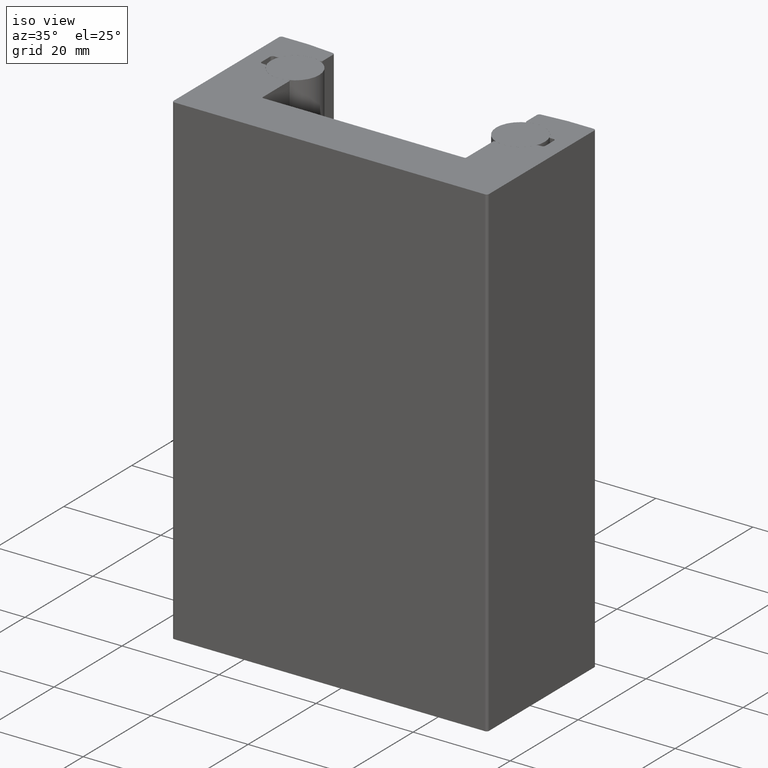
[diagram: clean part render]
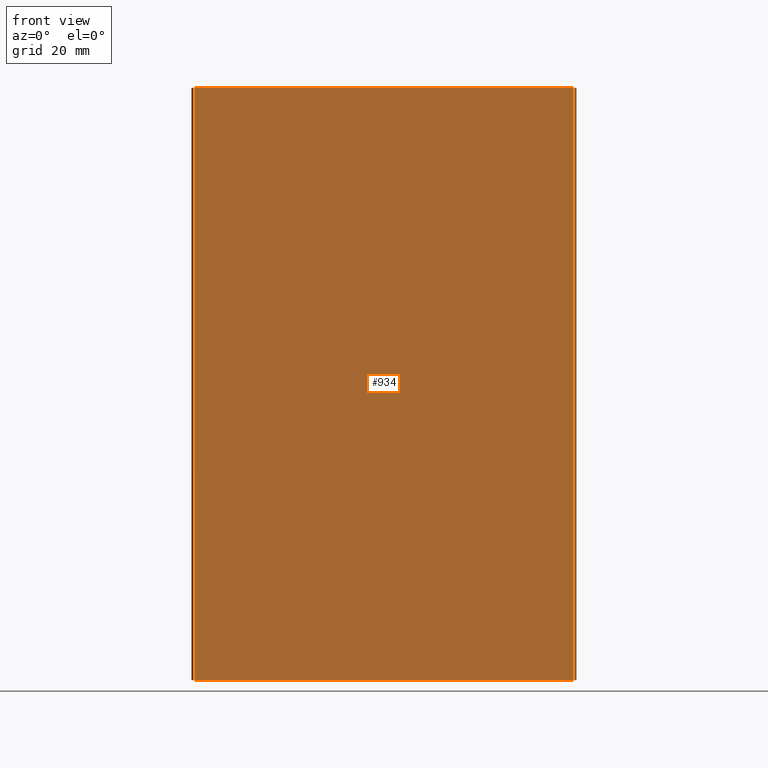
[diagram: tour spotlight — one face highlighted and labeled with its STEP entity id]
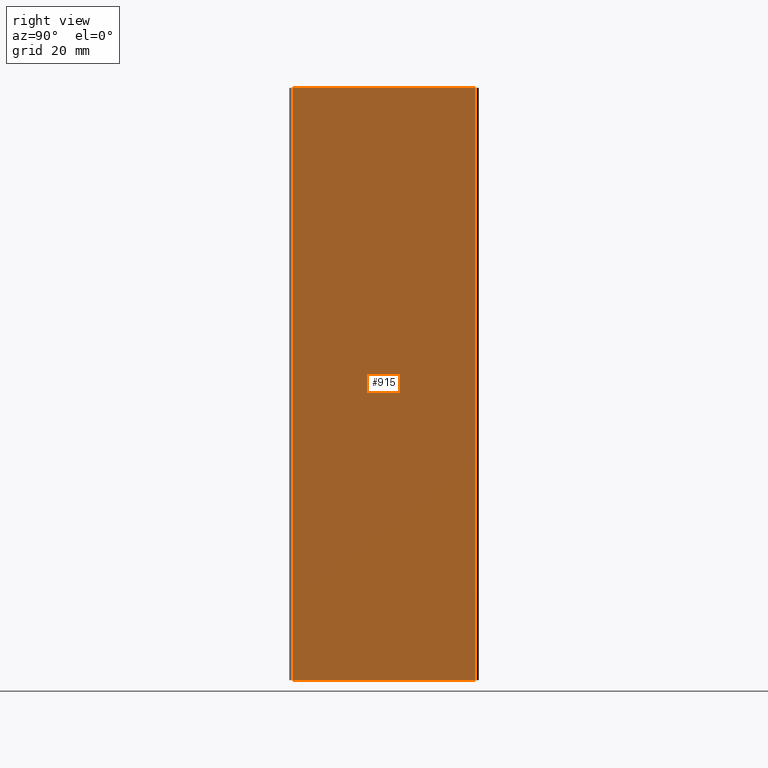
[diagram: tour spotlight — one face highlighted and labeled with its STEP entity id]
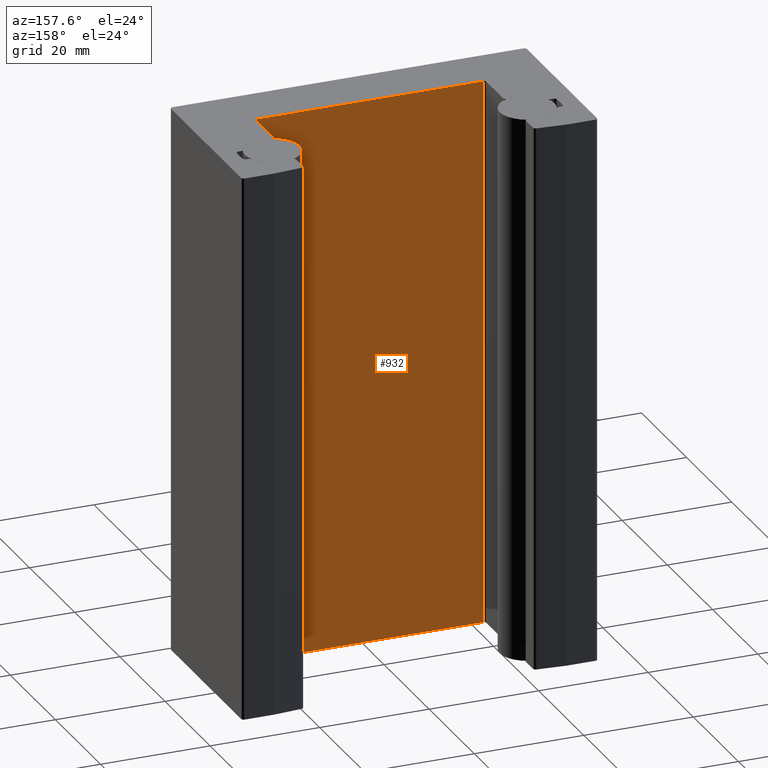
[diagram: tour spotlight — one face highlighted and labeled with its STEP entity id]
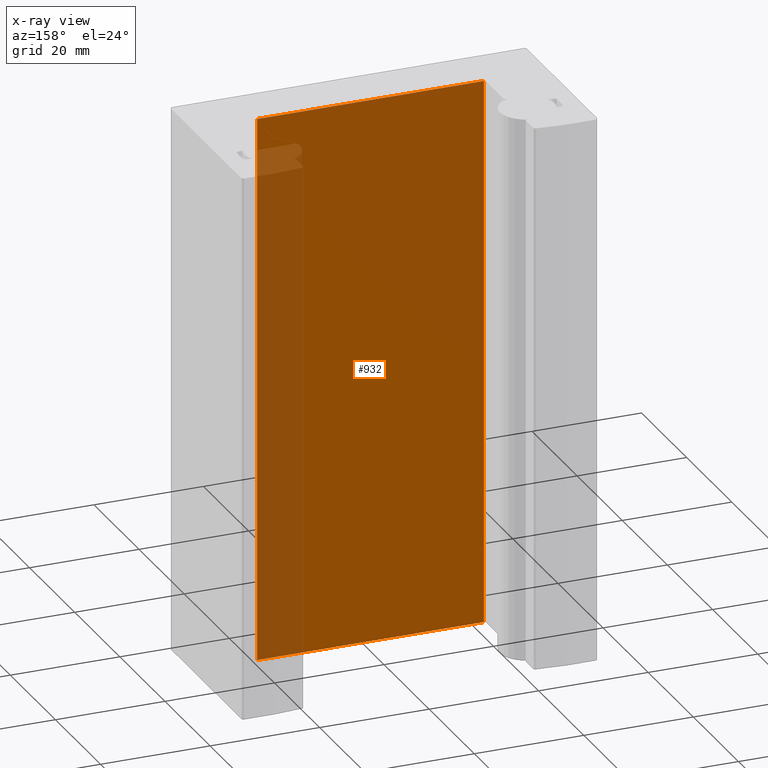
[diagram: x-ray of the same camera — body ghosted, this tour face saturated]
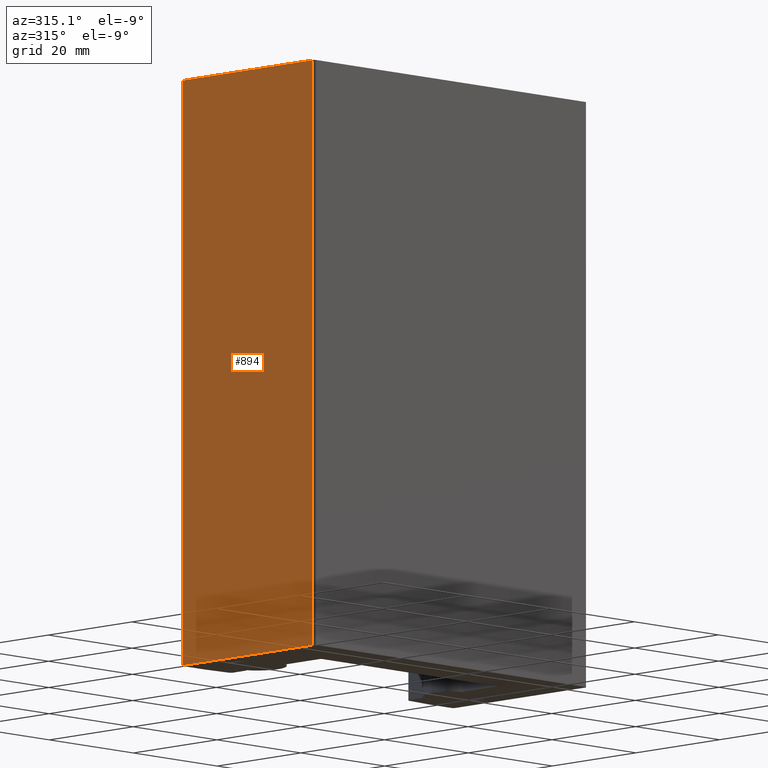
[diagram: tour spotlight — one face highlighted and labeled with its STEP entity id]
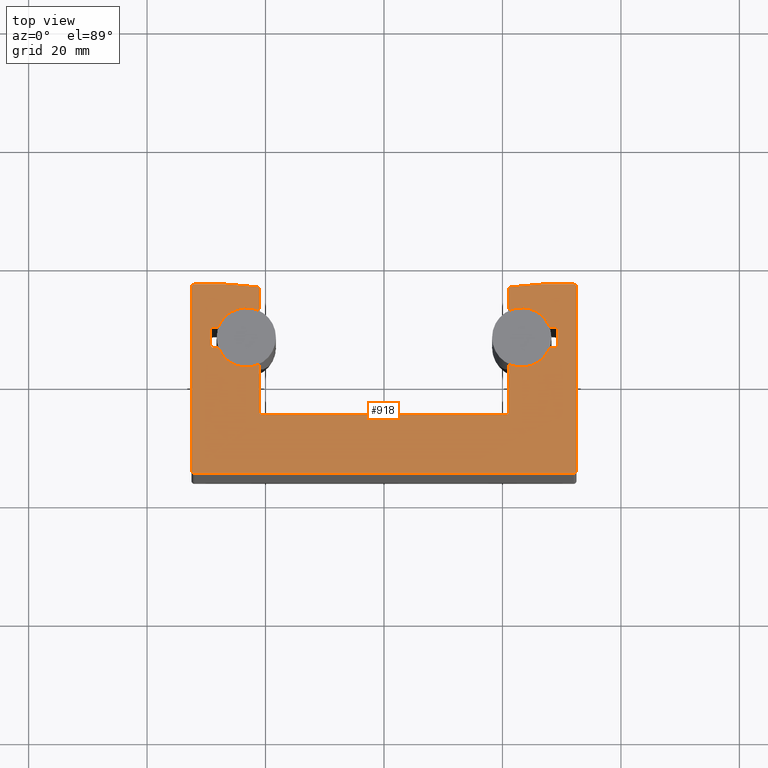
[diagram: tour spotlight — one face highlighted and labeled with its STEP entity id]
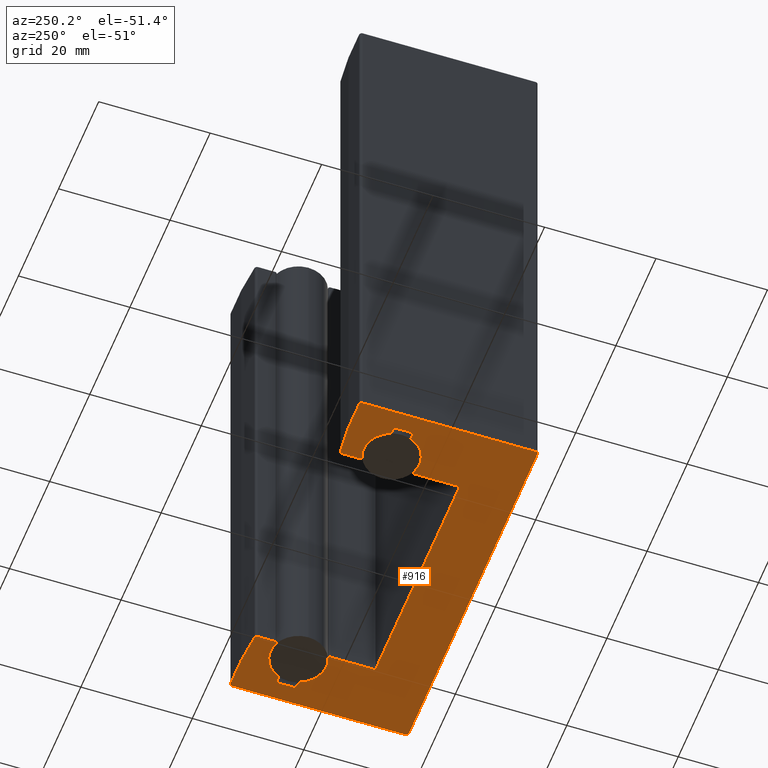
[diagram: tour spotlight — one face highlighted and labeled with its STEP entity id]
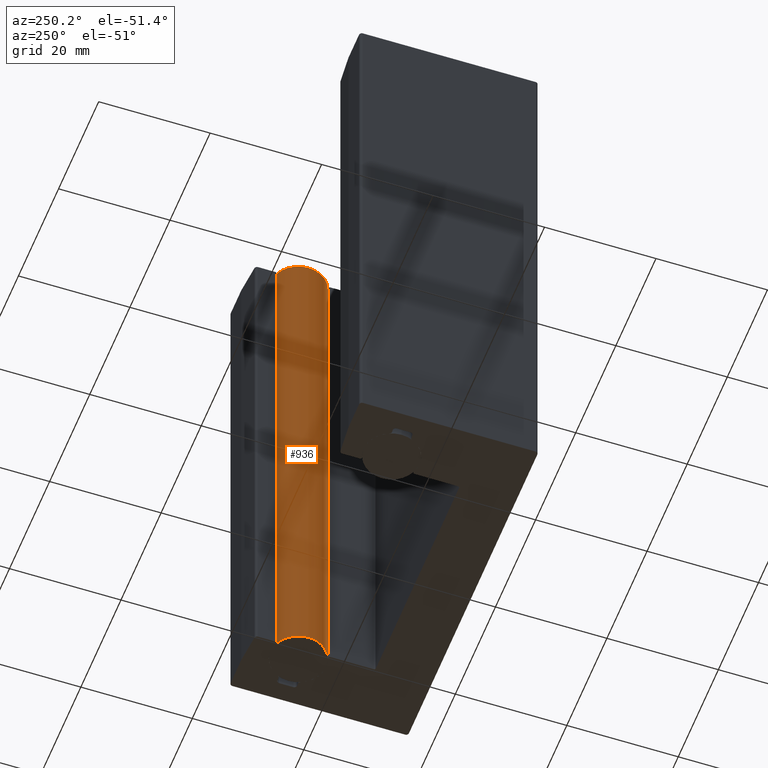
[diagram: tour spotlight — one face highlighted and labeled with its STEP entity id]
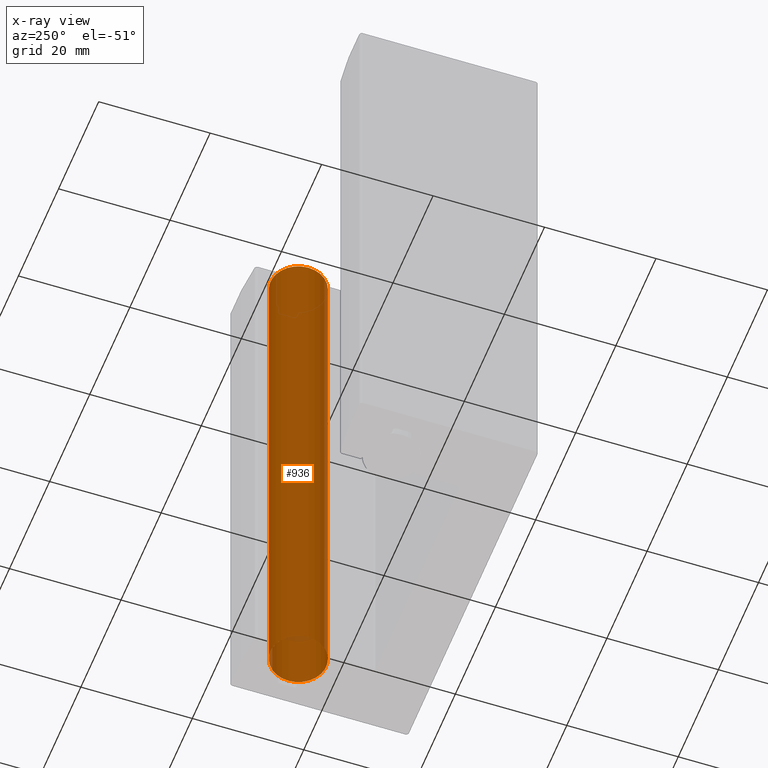
[diagram: x-ray of the same camera — body ghosted, this tour face saturated]
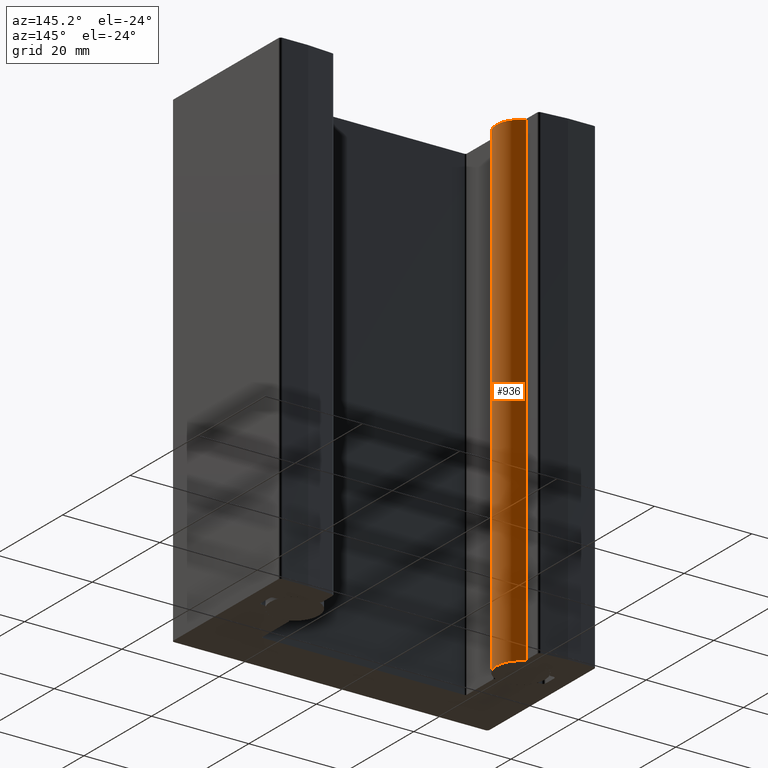
[diagram: tour spotlight — one face highlighted and labeled with its STEP entity id]
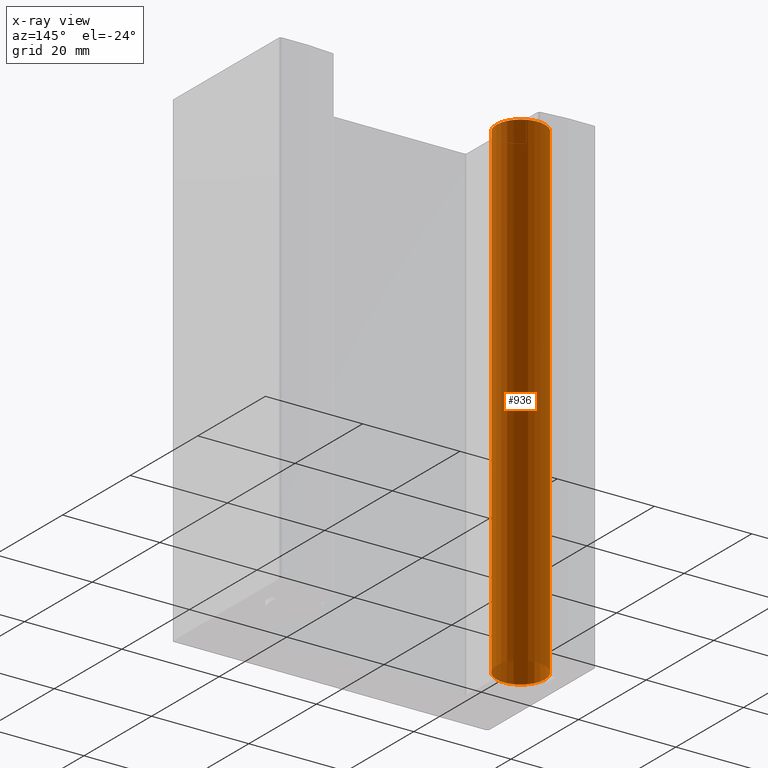
[diagram: x-ray of the same camera — body ghosted, this tour face saturated]
A machine part: a face-by-face anatomy tour. The part has 52 B-rep faces; the first image is the clean iso view, then the 8 largest visible faces are spotlighted one at a time (largest first), each with its STEP entity span.

Face 1 — front view, entity #934. In plain terms, the highlighted planar face has unit normal (0, -1, 0).
Definition (entity closure, byte-faithful):
#50=PLANE('',#1101);
#98=FACE_OUTER_BOUND('',#147,.T.);
#147=EDGE_LOOP('',(#852,#853,#854,#855));
#160=LINE('',#1444,#241);
#199=LINE('',#1576,#280);
#203=LINE('',#1584,#284);
#217=LINE('',#1648,#298);
#241=VECTOR('',#1144,10.);
#280=VECTOR('',#1279,10.);
#284=VECTOR('',#1287,10.);
#298=VECTOR('',#1345,10.);
#377=VERTEX_POINT('',#1440);
#379=VERTEX_POINT('',#1443);
#421=VERTEX_POINT('',#1569);
#424=VERTEX_POINT('',#1574);
#471=EDGE_CURVE('',#379,#377,#160,.T.);
#537=EDGE_CURVE('',#424,#421,#199,.T.);
#541=EDGE_CURVE('',#421,#377,#203,.T.);
#575=EDGE_CURVE('',#424,#379,#217,.T.);
#852=ORIENTED_EDGE('',*,*,#537,.F.);
#853=ORIENTED_EDGE('',*,*,#575,.T.);
#854=ORIENTED_EDGE('',*,*,#471,.T.);
#855=ORIENTED_EDGE('',*,*,#541,.F.);
#934=ADVANCED_FACE('',(#98),#50,.T.);
#1101=AXIS2_PLACEMENT_3D('',#1677,#1389,#1390);
#1144=DIRECTION('',(0.,0.,-1.));
#1279=DIRECTION('',(0.,0.,-1.));
#1287=DIRECTION('',(-1.,-2.73285667600039E-16,0.));
#1345=DIRECTION('',(-1.,-9.51361131547315E-16,0.));
#1389=DIRECTION('center_axis',(2.73285667600039E-16,-1.,0.));
#1390=DIRECTION('ref_axis',(1.,2.73285667600039E-16,0.));
#1440=CARTESIAN_POINT('',(-32.,-16.,-3000.));
#1443=CARTESIAN_POINT('',(-32.,-16.,-2900.));
#1444=CARTESIAN_POINT('',(-32.,-16.,0.));
#1569=CARTESIAN_POINT('',(32.,-16.,-3000.));
#1574=CARTESIAN_POINT('',(32.,-16.,-2900.));
#1576=CARTESIAN_POINT('',(32.,-16.,0.));
#1584=CARTESIAN_POINT('',(32.5,-16.,-3000.));
#1648=CARTESIAN_POINT('',(-32.5,-16.,-2900.));
#1677=CARTESIAN_POINT('Origin',(8.88178419700125E-15,-16.,0.));

Face 2 — right view, entity #915. In plain terms, the highlighted planar face has unit normal (1, 0, 0).
Definition (entity closure, byte-faithful):
#41=PLANE('',#1062);
#79=FACE_OUTER_BOUND('',#128,.T.);
#128=EDGE_LOOP('',(#696,#697,#698,#699));
#198=LINE('',#1573,#279);
#200=LINE('',#1579,#281);
#201=LINE('',#1581,#282);
#202=LINE('',#1582,#283);
#279=VECTOR('',#1276,10.);
#281=VECTOR('',#1282,10.);
#282=VECTOR('',#1283,10.);
#283=VECTOR('',#1284,10.);
#422=VERTEX_POINT('',#1570);
#423=VERTEX_POINT('',#1572);
#425=VERTEX_POINT('',#1578);
#426=VERTEX_POINT('',#1580);
#535=EDGE_CURVE('',#422,#423,#198,.T.);
#538=EDGE_CURVE('',#425,#422,#200,.T.);
#539=EDGE_CURVE('',#426,#425,#201,.T.);
#540=EDGE_CURVE('',#423,#426,#202,.T.);
#696=ORIENTED_EDGE('',*,*,#535,.F.);
#697=ORIENTED_EDGE('',*,*,#538,.F.);
#698=ORIENTED_EDGE('',*,*,#539,.F.);
#699=ORIENTED_EDGE('',*,*,#540,.F.);
#915=ADVANCED_FACE('',(#79),#41,.T.);
#1062=AXIS2_PLACEMENT_3D('',#1577,#1280,#1281);
#1276=DIRECTION('',(0.,0.,1.));
#1280=DIRECTION('center_axis',(1.,6.93889390390723E-16,0.));
#1281=DIRECTION('ref_axis',(-6.93889390390723E-16,1.,0.));
#1282=DIRECTION('',(6.93889390390723E-16,-1.,0.));
#1283=DIRECTION('',(0.,0.,-1.));
#1284=DIRECTION('',(-6.93889390390723E-16,1.,0.));
#1570=CARTESIAN_POINT('',(32.5,-15.5,-3000.));
#1572=CARTESIAN_POINT('',(32.5,-15.5,-2900.));
#1573=CARTESIAN_POINT('',(32.5,-15.5,0.));
#1577=CARTESIAN_POINT('Origin',(32.5,-16.,0.));
#1578=CARTESIAN_POINT('',(32.5,15.5,-3000.));
#1579=CARTESIAN_POINT('',(32.5,16.,-3000.));
#1580=CARTESIAN_POINT('',(32.5,15.5,-2900.));
#1581=CARTESIAN_POINT('',(32.5,15.5,0.));
#1582=CARTESIAN_POINT('',(32.5,16.,-2900.));

Face 3 — auxiliary view, entity #932. An x-ray twin of the same camera follows (body ghosted, this face saturated) — the face is partly hidden behind the body. In plain terms, the highlighted planar face has unit normal (0, -1, 0).
Definition (entity closure, byte-faithful):
#48=PLANE('',#1099);
#96=FACE_OUTER_BOUND('',#145,.T.);
#145=EDGE_LOOP('',(#844,#845,#846,#847));
#175=LINE('',#1492,#256);
#204=LINE('',#1586,#285);
#216=LINE('',#1647,#297);
#224=LINE('',#1660,#305);
#256=VECTOR('',#1189,10.);
#285=VECTOR('',#1288,10.);
#297=VECTOR('',#1344,10.);
#305=VECTOR('',#1362,10.);
#395=VERTEX_POINT('',#1488);
#397=VERTEX_POINT('',#1491);
#427=VERTEX_POINT('',#1585);
#454=VERTEX_POINT('',#1645);
#494=EDGE_CURVE('',#397,#395,#175,.T.);
#542=EDGE_CURVE('',#397,#427,#204,.T.);
#574=EDGE_CURVE('',#395,#454,#216,.T.);
#582=EDGE_CURVE('',#427,#454,#224,.T.);
#844=ORIENTED_EDGE('',*,*,#582,.F.);
#845=ORIENTED_EDGE('',*,*,#542,.F.);
#846=ORIENTED_EDGE('',*,*,#494,.T.);
#847=ORIENTED_EDGE('',*,*,#574,.T.);
#932=ADVANCED_FACE('',(#96),#48,.F.);
#1099=AXIS2_PLACEMENT_3D('',#1675,#1385,#1386);
#1189=DIRECTION('',(0.,0.,1.));
#1288=DIRECTION('',(1.,3.1720657846433E-16,0.));
#1344=DIRECTION('',(1.,9.07440220683023E-16,0.));
#1362=DIRECTION('',(0.,0.,1.));
#1385=DIRECTION('center_axis',(3.1720657846433E-16,-1.,0.));
#1386=DIRECTION('ref_axis',(-1.,-3.1720657846433E-16,0.));
#1488=CARTESIAN_POINT('',(-20.7,-6.00000000000001,-2900.));
#1491=CARTESIAN_POINT('',(-20.7,-6.00000000000001,-3000.));
#1492=CARTESIAN_POINT('',(-20.7,-6.00000000000001,3000.));
#1585=CARTESIAN_POINT('',(20.7,-5.99999999999999,-3000.));
#1586=CARTESIAN_POINT('',(18.625,-5.99999999999999,-3000.));
#1645=CARTESIAN_POINT('',(20.7,-5.99999999999999,-2900.));
#1647=CARTESIAN_POINT('',(-18.625,-6.00000000000001,-2900.));
#1660=CARTESIAN_POINT('',(20.7,-5.99999999999999,3000.));
#1675=CARTESIAN_POINT('Origin',(21.,-5.99999999999999,3000.));

Face 4 — auxiliary view, entity #894. In plain terms, the highlighted planar face has unit normal (1, 0, 0).
Definition (entity closure, byte-faithful):
#33=PLANE('',#1015);
#58=FACE_OUTER_BOUND('',#107,.T.);
#107=EDGE_LOOP('',(#612,#613,#614,#615));
#161=LINE('',#1447,#242);
#162=LINE('',#1450,#243);
#163=LINE('',#1452,#244);
#164=LINE('',#1453,#245);
#242=VECTOR('',#1147,10.);
#243=VECTOR('',#1150,10.);
#244=VECTOR('',#1151,10.);
#245=VECTOR('',#1152,10.);
#378=VERTEX_POINT('',#1441);
#380=VERTEX_POINT('',#1445);
#381=VERTEX_POINT('',#1449);
#382=VERTEX_POINT('',#1451);
#473=EDGE_CURVE('',#378,#380,#161,.T.);
#474=EDGE_CURVE('',#380,#381,#162,.T.);
#475=EDGE_CURVE('',#381,#382,#163,.T.);
#476=EDGE_CURVE('',#382,#378,#164,.T.);
#612=ORIENTED_EDGE('',*,*,#473,.T.);
#613=ORIENTED_EDGE('',*,*,#474,.T.);
#614=ORIENTED_EDGE('',*,*,#475,.T.);
#615=ORIENTED_EDGE('',*,*,#476,.T.);
#894=ADVANCED_FACE('',(#58),#33,.F.);
#1015=AXIS2_PLACEMENT_3D('',#1448,#1148,#1149);
#1147=DIRECTION('',(0.,0.,1.));
#1148=DIRECTION('center_axis',(1.,5.3075740875663E-16,0.));
#1149=DIRECTION('ref_axis',(-5.3075740875663E-16,1.,0.));
#1150=DIRECTION('',(-5.3075740875663E-16,1.,0.));
#1151=DIRECTION('',(0.,0.,-1.));
#1152=DIRECTION('',(5.3075740875663E-16,-1.,0.));
#1441=CARTESIAN_POINT('',(-32.5,-15.5,-3000.));
#1445=CARTESIAN_POINT('',(-32.5,-15.5,-2900.));
#1447=CARTESIAN_POINT('',(-32.5,-15.5,0.));
#1448=CARTESIAN_POINT('Origin',(-32.5,-16.,0.));
#1449=CARTESIAN_POINT('',(-32.5,15.5,-2900.));
#1450=CARTESIAN_POINT('',(-32.5,16.,-2900.));
#1451=CARTESIAN_POINT('',(-32.5,15.5,-3000.));
#1452=CARTESIAN_POINT('',(-32.5,15.5,0.));
#1453=CARTESIAN_POINT('',(-32.5,16.,-3000.));

Face 5 — top view, entity #918. In plain terms, the highlighted planar face has unit normal (0, 0, 1).
Definition (entity closure, byte-faithful):
#43=PLANE('',#1076);
#82=FACE_OUTER_BOUND('',#131,.T.);
#131=EDGE_LOOP('',(#748,#749,#750,#751,#752,#753,#754,#755,#756,#757,#758,
#759,#760,#761,#762,#763,#764,#765,#766,#767,#768,#769,#770,#771,#772,#773,
#774,#775,#776,#777,#778,#779,#780,#781,#782,#783,#784,#785,#786,#787,#788,
#789,#790,#791));
#155=LINE('',#1426,#236);
#159=LINE('',#1438,#240);
#162=LINE('',#1450,#243);
#166=LINE('',#1462,#247);
#172=LINE('',#1483,#253);
#179=LINE('',#1501,#260);
#183=LINE('',#1521,#264);
#187=LINE('',#1539,#268);
#191=LINE('',#1552,#272);
#195=LINE('',#1564,#276);
#202=LINE('',#1582,#283);
#211=LINE('',#1621,#292);
#212=LINE('',#1625,#293);
#213=LINE('',#1629,#294);
#214=LINE('',#1636,#295);
#215=LINE('',#1644,#296);
#216=LINE('',#1647,#297);
#217=LINE('',#1648,#298);
#236=VECTOR('',#1127,10.);
#240=VECTOR('',#1139,10.);
#243=VECTOR('',#1150,10.);
#247=VECTOR('',#1162,10.);
#253=VECTOR('',#1182,10.);
#260=VECTOR('',#1197,10.);
#264=VECTOR('',#1221,10.);
#268=VECTOR('',#1245,10.);
#272=VECTOR('',#1257,10.);
#276=VECTOR('',#1269,10.);
#283=VECTOR('',#1284,10.);
#292=VECTOR('',#1321,10.);
#293=VECTOR('',#1324,10.);
#294=VECTOR('',#1327,10.);
#295=VECTOR('',#1334,10.);
#296=VECTOR('',#1341,10.);
#297=VECTOR('',#1344,10.);
#298=VECTOR('',#1345,10.);
#313=CIRCLE('',#1005,0.5);
#315=CIRCLE('',#1009,0.5);
#318=CIRCLE('',#1014,0.5);
#320=CIRCLE('',#1018,0.5);
#321=CIRCLE('',#1021,0.5);
#324=CIRCLE('',#1025,0.5);
#325=CIRCLE('',#1028,0.3);
#328=CIRCLE('',#1033,0.3);
#330=CIRCLE('',#1036,5.);
#332=CIRCLE('',#1039,0.3);
#334=CIRCLE('',#1043,0.3);
#336=CIRCLE('',#1046,5.);
#337=CIRCLE('',#1048,0.3);
#339=CIRCLE('',#1052,0.5);
#341=CIRCLE('',#1056,0.5);
#344=CIRCLE('',#1061,0.5);
#355=CIRCLE('',#1075,0.5);
#356=CIRCLE('',#1077,0.5);
#357=CIRCLE('',#1078,0.5);
#358=CIRCLE('',#1079,0.3);
#359=CIRCLE('',#1080,5.);
#360=CIRCLE('',#1081,0.3);
#361=CIRCLE('',#1082,0.3);
#362=CIRCLE('',#1083,5.);
#363=CIRCLE('',#1084,0.3);
#364=CIRCLE('',#1085,0.3);
#367=VERTEX_POINT('',#1413);
#368=VERTEX_POINT('',#1414);
#372=VERTEX_POINT('',#1424);
#373=VERTEX_POINT('',#1428);
#376=VERTEX_POINT('',#1436);
#379=VERTEX_POINT('',#1443);
#380=VERTEX_POINT('',#1445);
#381=VERTEX_POINT('',#1449);
#384=VERTEX_POINT('',#1457);
#385=VERTEX_POINT('',#1461);
#387=VERTEX_POINT('',#1467);
#391=VERTEX_POINT('',#1476);
#392=VERTEX_POINT('',#1478);
#393=VERTEX_POINT('',#1482);
#395=VERTEX_POINT('',#1488);
#396=VERTEX_POINT('',#1489);
#400=VERTEX_POINT('',#1499);
#402=VERTEX_POINT('',#1505);
#404=VERTEX_POINT('',#1511);
#406=VERTEX_POINT('',#1517);
#408=VERTEX_POINT('',#1526);
#410=VERTEX_POINT('',#1532);
#411=VERTEX_POINT('',#1542);
#412=VERTEX_POINT('',#1543);
#415=VERTEX_POINT('',#1551);
#417=VERTEX_POINT('',#1557);
#419=VERTEX_POINT('',#1563);
#423=VERTEX_POINT('',#1572);
#424=VERTEX_POINT('',#1574);
#426=VERTEX_POINT('',#1580);
#441=VERTEX_POINT('',#1616);
#442=VERTEX_POINT('',#1620);
#443=VERTEX_POINT('',#1622);
#444=VERTEX_POINT('',#1624);
#445=VERTEX_POINT('',#1626);
#446=VERTEX_POINT('',#1628);
#447=VERTEX_POINT('',#1630);
#448=VERTEX_POINT('',#1632);
#449=VERTEX_POINT('',#1635);
#450=VERTEX_POINT('',#1637);
#451=VERTEX_POINT('',#1639);
#452=VERTEX_POINT('',#1641);
#453=VERTEX_POINT('',#1643);
#454=VERTEX_POINT('',#1645);
#457=EDGE_CURVE('',#367,#368,#313,.T.);
#463=EDGE_CURVE('',#372,#368,#155,.T.);
#464=EDGE_CURVE('',#372,#373,#315,.T.);
#469=EDGE_CURVE('',#376,#373,#159,.T.);
#472=EDGE_CURVE('',#380,#379,#318,.T.);
#474=EDGE_CURVE('',#380,#381,#162,.T.);
#478=EDGE_CURVE('',#384,#381,#320,.T.);
#480=EDGE_CURVE('',#384,#385,#166,.T.);
#483=EDGE_CURVE('',#387,#385,#321,.T.);
#488=EDGE_CURVE('',#392,#391,#324,.T.);
#490=EDGE_CURVE('',#392,#393,#172,.T.);
#493=EDGE_CURVE('',#395,#396,#325,.T.);
#499=EDGE_CURVE('',#400,#396,#179,.T.);
#502=EDGE_CURVE('',#400,#402,#328,.T.);
#505=EDGE_CURVE('',#404,#402,#330,.T.);
#508=EDGE_CURVE('',#404,#406,#332,.T.);
#509=EDGE_CURVE('',#367,#406,#183,.T.);
#513=EDGE_CURVE('',#376,#408,#334,.T.);
#516=EDGE_CURVE('',#410,#408,#336,.T.);
#517=EDGE_CURVE('',#410,#393,#337,.T.);
#519=EDGE_CURVE('',#387,#391,#187,.T.);
#521=EDGE_CURVE('',#411,#412,#339,.T.);
#525=EDGE_CURVE('',#415,#412,#191,.T.);
#528=EDGE_CURVE('',#415,#417,#341,.T.);
#531=EDGE_CURVE('',#419,#417,#195,.T.);
#536=EDGE_CURVE('',#423,#424,#344,.T.);
#540=EDGE_CURVE('',#423,#426,#202,.T.);
#559=EDGE_CURVE('',#441,#426,#355,.T.);
#560=EDGE_CURVE('',#441,#442,#211,.T.);
#561=EDGE_CURVE('',#443,#442,#356,.T.);
#562=EDGE_CURVE('',#443,#444,#212,.T.);
#563=EDGE_CURVE('',#445,#444,#357,.T.);
#564=EDGE_CURVE('',#445,#446,#213,.T.);
#565=EDGE_CURVE('',#447,#446,#358,.T.);
#566=EDGE_CURVE('',#447,#448,#359,.T.);
#567=EDGE_CURVE('',#419,#448,#360,.T.);
#568=EDGE_CURVE('',#411,#449,#214,.T.);
#569=EDGE_CURVE('',#450,#449,#361,.T.);
#570=EDGE_CURVE('',#450,#451,#362,.T.);
#571=EDGE_CURVE('',#452,#451,#363,.T.);
#572=EDGE_CURVE('',#452,#453,#215,.T.);
#573=EDGE_CURVE('',#454,#453,#364,.T.);
#574=EDGE_CURVE('',#395,#454,#216,.T.);
#575=EDGE_CURVE('',#424,#379,#217,.T.);
#748=ORIENTED_EDGE('',*,*,#536,.F.);
#749=ORIENTED_EDGE('',*,*,#540,.T.);
#750=ORIENTED_EDGE('',*,*,#559,.F.);
#751=ORIENTED_EDGE('',*,*,#560,.T.);
#752=ORIENTED_EDGE('',*,*,#561,.F.);
#753=ORIENTED_EDGE('',*,*,#562,.T.);
#754=ORIENTED_EDGE('',*,*,#563,.F.);
#755=ORIENTED_EDGE('',*,*,#564,.T.);
#756=ORIENTED_EDGE('',*,*,#565,.F.);
#757=ORIENTED_EDGE('',*,*,#566,.T.);
#758=ORIENTED_EDGE('',*,*,#567,.F.);
#759=ORIENTED_EDGE('',*,*,#531,.T.);
#760=ORIENTED_EDGE('',*,*,#528,.F.);
#761=ORIENTED_EDGE('',*,*,#525,.T.);
#762=ORIENTED_EDGE('',*,*,#521,.F.);
#763=ORIENTED_EDGE('',*,*,#568,.T.);
#764=ORIENTED_EDGE('',*,*,#569,.F.);
#765=ORIENTED_EDGE('',*,*,#570,.T.);
#766=ORIENTED_EDGE('',*,*,#571,.F.);
#767=ORIENTED_EDGE('',*,*,#572,.T.);
#768=ORIENTED_EDGE('',*,*,#573,.F.);
#769=ORIENTED_EDGE('',*,*,#574,.F.);
#770=ORIENTED_EDGE('',*,*,#493,.T.);
#771=ORIENTED_EDGE('',*,*,#499,.F.);
#772=ORIENTED_EDGE('',*,*,#502,.T.);
#773=ORIENTED_EDGE('',*,*,#505,.F.);
#774=ORIENTED_EDGE('',*,*,#508,.T.);
#775=ORIENTED_EDGE('',*,*,#509,.F.);
#776=ORIENTED_EDGE('',*,*,#457,.T.);
#777=ORIENTED_EDGE('',*,*,#463,.F.);
#778=ORIENTED_EDGE('',*,*,#464,.T.);
#779=ORIENTED_EDGE('',*,*,#469,.F.);
#780=ORIENTED_EDGE('',*,*,#513,.T.);
#781=ORIENTED_EDGE('',*,*,#516,.F.);
#782=ORIENTED_EDGE('',*,*,#517,.T.);
#783=ORIENTED_EDGE('',*,*,#490,.F.);
#784=ORIENTED_EDGE('',*,*,#488,.T.);
#785=ORIENTED_EDGE('',*,*,#519,.F.);
#786=ORIENTED_EDGE('',*,*,#483,.T.);
#787=ORIENTED_EDGE('',*,*,#480,.F.);
#788=ORIENTED_EDGE('',*,*,#478,.T.);
#789=ORIENTED_EDGE('',*,*,#474,.F.);
#790=ORIENTED_EDGE('',*,*,#472,.T.);
#791=ORIENTED_EDGE('',*,*,#575,.F.);
#918=ADVANCED_FACE('',(#82),#43,.T.);
#1005=AXIS2_PLACEMENT_3D('',#1415,#1117,#1118);
#1009=AXIS2_PLACEMENT_3D('',#1429,#1130,#1131);
#1014=AXIS2_PLACEMENT_3D('',#1446,#1145,#1146);
#1018=AXIS2_PLACEMENT_3D('',#1458,#1157,#1158);
#1021=AXIS2_PLACEMENT_3D('',#1468,#1167,#1168);
#1025=AXIS2_PLACEMENT_3D('',#1479,#1177,#1178);
#1028=AXIS2_PLACEMENT_3D('',#1490,#1187,#1188);
#1033=AXIS2_PLACEMENT_3D('',#1507,#1203,#1204);
#1036=AXIS2_PLACEMENT_3D('',#1513,#1210,#1211);
#1039=AXIS2_PLACEMENT_3D('',#1519,#1217,#1218);
#1043=AXIS2_PLACEMENT_3D('',#1528,#1228,#1229);
#1046=AXIS2_PLACEMENT_3D('',#1534,#1235,#1236);
#1048=AXIS2_PLACEMENT_3D('',#1536,#1239,#1240);
#1052=AXIS2_PLACEMENT_3D('',#1544,#1249,#1250);
#1056=AXIS2_PLACEMENT_3D('',#1558,#1262,#1263);
#1061=AXIS2_PLACEMENT_3D('',#1575,#1277,#1278);
#1075=AXIS2_PLACEMENT_3D('',#1618,#1317,#1318);
#1076=AXIS2_PLACEMENT_3D('',#1619,#1319,#1320);
#1077=AXIS2_PLACEMENT_3D('',#1623,#1322,#1323);
#1078=AXIS2_PLACEMENT_3D('',#1627,#1325,#1326);
#1079=AXIS2_PLACEMENT_3D('',#1631,#1328,#1329);
#1080=AXIS2_PLACEMENT_3D('',#1633,#1330,#1331);
#1081=AXIS2_PLACEMENT_3D('',#1634,#1332,#1333);
#1082=AXIS2_PLACEMENT_3D('',#1638,#1335,#1336);
#1083=AXIS2_PLACEMENT_3D('',#1640,#1337,#1338);
#1084=AXIS2_PLACEMENT_3D('',#1642,#1339,#1340);
#1085=AXIS2_PLACEMENT_3D('',#1646,#1342,#1343);
#1117=DIRECTION('center_axis',(0.,0.,-1.));
#1118=DIRECTION('ref_axis',(-0.707106781186545,-0.70710678118655,0.));
#1127=DIRECTION('',(1.22464679914735E-15,-1.,0.));
#1130=DIRECTION('center_axis',(0.,0.,-1.));
#1131=DIRECTION('ref_axis',(-0.707106781186553,0.707106781186542,0.));
#1139=DIRECTION('',(-1.,-2.06812011987062E-15,0.));
#1145=DIRECTION('center_axis',(0.,0.,1.));
#1146=DIRECTION('ref_axis',(-0.707106781186544,-0.707106781186552,0.));
#1150=DIRECTION('',(-5.3075740875663E-16,1.,0.));
#1157=DIRECTION('center_axis',(0.,0.,1.));
#1158=DIRECTION('ref_axis',(-0.707106781186548,0.707106781186547,0.));
#1162=DIRECTION('',(1.,4.04789796347237E-16,0.));
#1167=DIRECTION('center_axis',(0.,0.,1.));
#1168=DIRECTION('ref_axis',(0.0436193873653402,0.999048221581858,0.));
#1177=DIRECTION('center_axis',(0.,0.,1.));
#1178=DIRECTION('ref_axis',(0.737277336810126,0.675590207615658,0.));
#1182=DIRECTION('',(1.01810784554687E-15,-1.,0.));
#1187=DIRECTION('center_axis',(0.,0.,-1.));
#1188=DIRECTION('ref_axis',(-0.707106781186549,-0.707106781186546,0.));
#1197=DIRECTION('',(1.01810784554687E-15,-1.,0.));
#1203=DIRECTION('center_axis',(0.,0.,1.));
#1204=DIRECTION('ref_axis',(0.562172336431673,0.827020111092199,0.));
#1210=DIRECTION('center_axis',(0.,0.,1.));
#1211=DIRECTION('ref_axis',(-1.,-1.22464679914735E-15,0.));
#1217=DIRECTION('center_axis',(0.,0.,1.));
#1218=DIRECTION('ref_axis',(0.553718135502984,0.832704165004054,0.));
#1221=DIRECTION('',(1.,2.06812011987062E-15,0.));
#1228=DIRECTION('center_axis',(0.,0.,1.));
#1229=DIRECTION('ref_axis',(0.553718135502986,-0.832704165004053,0.));
#1235=DIRECTION('center_axis',(0.,0.,1.));
#1236=DIRECTION('ref_axis',(-1.,-1.22464679914735E-15,0.));
#1239=DIRECTION('center_axis',(0.,0.,1.));
#1240=DIRECTION('ref_axis',(0.562172336431676,-0.827020111092198,0.));
#1245=DIRECTION('',(0.996194698091746,-0.0871557427476572,0.));
#1249=DIRECTION('center_axis',(0.,0.,1.));
#1250=DIRECTION('ref_axis',(0.707106781186546,-0.707106781186549,0.));
#1257=DIRECTION('',(0.,-1.,0.));
#1262=DIRECTION('center_axis',(0.,0.,1.));
#1263=DIRECTION('ref_axis',(0.707106781186552,0.707106781186543,0.));
#1269=DIRECTION('',(1.,-8.43473320723263E-16,0.));
#1277=DIRECTION('center_axis',(0.,0.,-1.));
#1278=DIRECTION('ref_axis',(0.707106781186544,-0.707106781186551,0.));
#1284=DIRECTION('',(-6.93889390390723E-16,1.,0.));
#1317=DIRECTION('center_axis',(0.,0.,-1.));
#1318=DIRECTION('ref_axis',(0.707106781186548,0.707106781186548,0.));
#1319=DIRECTION('center_axis',(0.,0.,1.));
#1320=DIRECTION('ref_axis',(1.,0.,0.));
#1321=DIRECTION('',(-1.,-8.19857002800116E-16,0.));
#1322=DIRECTION('center_axis',(0.,0.,-1.));
#1323=DIRECTION('ref_axis',(-0.0436193873653414,0.999048221581858,0.));
#1324=DIRECTION('',(-0.996194698091746,-0.0871557427476585,0.));
#1325=DIRECTION('center_axis',(0.,0.,-1.));
#1326=DIRECTION('ref_axis',(-0.737277336810127,0.675590207615657,0.));
#1327=DIRECTION('',(2.06538953600488E-16,-1.,0.));
#1328=DIRECTION('center_axis',(0.,0.,-1.));
#1329=DIRECTION('ref_axis',(-0.562172336431675,-0.827020111092198,0.));
#1330=DIRECTION('center_axis',(0.,0.,-1.));
#1331=DIRECTION('ref_axis',(1.,0.,0.));
#1332=DIRECTION('center_axis',(0.,0.,-1.));
#1333=DIRECTION('ref_axis',(-0.553718135502985,-0.832704165004053,0.));
#1334=DIRECTION('',(-1.,8.43473320723263E-16,0.));
#1335=DIRECTION('center_axis',(0.,0.,-1.));
#1336=DIRECTION('ref_axis',(-0.553718135502985,0.832704165004053,0.));
#1337=DIRECTION('center_axis',(0.,0.,-1.));
#1338=DIRECTION('ref_axis',(1.,0.,0.));
#1339=DIRECTION('center_axis',(0.,0.,-1.));
#1340=DIRECTION('ref_axis',(-0.562172336431674,0.827020111092199,0.));
#1341=DIRECTION('',(2.06538953600488E-16,-1.,0.));
#1342=DIRECTION('center_axis',(0.,0.,1.));
#1343=DIRECTION('ref_axis',(0.70710678118655,-0.707106781186545,0.));
#1344=DIRECTION('',(1.,9.07440220683023E-16,0.));
#1345=DIRECTION('',(-1.,-9.51361131547315E-16,0.));
#1413=CARTESIAN_POINT('',(-28.75,5.24999999999998,-2900.));
#1414=CARTESIAN_POINT('',(-29.25,5.74999999999998,-2900.));
#1415=CARTESIAN_POINT('Origin',(-28.75,5.74999999999998,-2900.));
#1424=CARTESIAN_POINT('',(-29.25,8.24999999999998,-2900.));
#1426=CARTESIAN_POINT('',(-29.25,4.37499999999997,-2900.));
#1428=CARTESIAN_POINT('',(-28.75,8.74999999999998,-2900.));
#1429=CARTESIAN_POINT('Origin',(-28.75,8.24999999999998,-2900.));
#1436=CARTESIAN_POINT('',(-28.1374840153191,8.74999999999998,-2900.));
#1438=CARTESIAN_POINT('',(-22.0918742493994,8.74999999999999,-2900.));
#1443=CARTESIAN_POINT('',(-32.,-16.,-2900.));
#1445=CARTESIAN_POINT('',(-32.5,-15.5,-2900.));
#1446=CARTESIAN_POINT('Origin',(-32.,-15.5,-2900.));
#1449=CARTESIAN_POINT('',(-32.5,15.5,-2900.));
#1450=CARTESIAN_POINT('',(-32.5,16.,-2900.));
#1457=CARTESIAN_POINT('',(-32.,16.,-2900.));
#1458=CARTESIAN_POINT('Origin',(-32.,15.5,-2900.));
#1461=CARTESIAN_POINT('',(-26.7200000000001,16.,-2900.));
#1462=CARTESIAN_POINT('',(-8.55413725553088E-15,16.,-2900.));
#1467=CARTESIAN_POINT('',(-26.6764221286262,15.9980973490459,-2900.));
#1468=CARTESIAN_POINT('Origin',(-26.7200000000001,15.5,-2900.));
#1476=CARTESIAN_POINT('',(-21.4564221286262,15.5414065254405,-2900.));
#1478=CARTESIAN_POINT('',(-21.,15.0433091763947,-2900.));
#1479=CARTESIAN_POINT('Origin',(-21.5,15.0433091763947,-2900.));
#1482=CARTESIAN_POINT('',(-21.,11.9282349781641,-2900.));
#1483=CARTESIAN_POINT('',(-21.,7.75073738170168,-2900.));
#1488=CARTESIAN_POINT('',(-20.7,-6.00000000000001,-2900.));
#1489=CARTESIAN_POINT('',(-21.,-5.70000000000001,-2900.));
#1490=CARTESIAN_POINT('Origin',(-20.7,-5.70000000000001,-2900.));
#1499=CARTESIAN_POINT('',(-21.,2.0717650218359,-2900.));
#1501=CARTESIAN_POINT('',(-21.,7.75073738170168,-2900.));
#1505=CARTESIAN_POINT('',(-21.4103773584906,2.35072171871311,-2900.));
#1507=CARTESIAN_POINT('Origin',(-21.3,2.0717650218359,-2900.));
#1511=CARTESIAN_POINT('',(-27.8608339767161,5.06603773584904,-2900.));
#1513=CARTESIAN_POINT('Origin',(-23.25,6.99999999999999,-2900.));
#1517=CARTESIAN_POINT('',(-28.1374840153191,5.24999999999998,-2900.));
#1519=CARTESIAN_POINT('Origin',(-28.1374840153191,4.94999999999998,-2900.));
#1521=CARTESIAN_POINT('',(-22.75,5.24999999999999,-2900.));
#1526=CARTESIAN_POINT('',(-27.8608339767161,8.93396226415092,-2900.));
#1528=CARTESIAN_POINT('Origin',(-28.1374840153191,9.04999999999998,-2900.));
#1532=CARTESIAN_POINT('',(-21.4103773584906,11.6492782812869,-2900.));
#1534=CARTESIAN_POINT('Origin',(-23.25,6.99999999999999,-2900.));
#1536=CARTESIAN_POINT('Origin',(-21.3,11.9282349781641,-2900.));
#1539=CARTESIAN_POINT('',(-20.8191748466171,15.485654612402,-2900.));
#1542=CARTESIAN_POINT('',(28.75,5.25000000000001,-2900.));
#1543=CARTESIAN_POINT('',(29.25,5.75000000000001,-2900.));
#1544=CARTESIAN_POINT('Origin',(28.75,5.75000000000001,-2900.));
#1551=CARTESIAN_POINT('',(29.25,8.25000000000001,-2900.));
#1552=CARTESIAN_POINT('',(29.25,4.37500000000001,-2900.));
#1557=CARTESIAN_POINT('',(28.75,8.75000000000001,-2900.));
#1558=CARTESIAN_POINT('Origin',(28.75,8.25000000000001,-2900.));
#1563=CARTESIAN_POINT('',(28.1374840153191,8.75000000000001,-2900.));
#1564=CARTESIAN_POINT('',(22.0918742493994,8.75000000000002,-2900.));
#1572=CARTESIAN_POINT('',(32.5,-15.5,-2900.));
#1574=CARTESIAN_POINT('',(32.,-16.,-2900.));
#1575=CARTESIAN_POINT('Origin',(32.,-15.5,-2900.));
#1580=CARTESIAN_POINT('',(32.5,15.5,-2900.));
#1582=CARTESIAN_POINT('',(32.5,16.,-2900.));
#1616=CARTESIAN_POINT('',(32.,16.,-2900.));
#1618=CARTESIAN_POINT('Origin',(32.,15.5,-2900.));
#1619=CARTESIAN_POINT('Origin',(16.25,8.88178419700125E-15,-2900.));
#1620=CARTESIAN_POINT('',(26.7200000000001,16.,-2900.));
#1621=CARTESIAN_POINT('',(-8.55413725553088E-15,16.,-2900.));
#1622=CARTESIAN_POINT('',(26.6764221286262,15.9980973490459,-2900.));
#1623=CARTESIAN_POINT('Origin',(26.7200000000001,15.5,-2900.));
#1624=CARTESIAN_POINT('',(21.4564221286262,15.5414065254406,-2900.));
#1625=CARTESIAN_POINT('',(20.8191748466171,15.4856546124021,-2900.));
#1626=CARTESIAN_POINT('',(21.,15.0433091763947,-2900.));
#1627=CARTESIAN_POINT('Origin',(21.5,15.0433091763947,-2900.));
#1628=CARTESIAN_POINT('',(21.,11.9282349781641,-2900.));
#1629=CARTESIAN_POINT('',(21.,7.7507373817017,-2900.));
#1630=CARTESIAN_POINT('',(21.4103773584906,11.6492782812869,-2900.));
#1631=CARTESIAN_POINT('Origin',(21.3,11.9282349781641,-2900.));
#1632=CARTESIAN_POINT('',(27.8608339767161,8.93396226415096,-2900.));
#1633=CARTESIAN_POINT('Origin',(23.25,7.00000000000002,-2900.));
#1634=CARTESIAN_POINT('Origin',(28.1374840153191,9.05000000000001,-2900.));
#1635=CARTESIAN_POINT('',(28.1374840153191,5.25000000000001,-2900.));
#1636=CARTESIAN_POINT('',(22.75,5.25000000000002,-2900.));
#1637=CARTESIAN_POINT('',(27.8608339767161,5.06603773584907,-2900.));
#1638=CARTESIAN_POINT('Origin',(28.1374840153191,4.95000000000001,-2900.));
#1639=CARTESIAN_POINT('',(21.4103773584906,2.35072171871314,-2900.));
#1640=CARTESIAN_POINT('Origin',(23.25,7.00000000000002,-2900.));
#1641=CARTESIAN_POINT('',(21.,2.07176502183592,-2900.));
#1642=CARTESIAN_POINT('Origin',(21.3,2.07176502183592,-2900.));
#1643=CARTESIAN_POINT('',(21.,-5.69999999999999,-2900.));
#1644=CARTESIAN_POINT('',(21.,7.7507373817017,-2900.));
#1645=CARTESIAN_POINT('',(20.7,-5.99999999999999,-2900.));
#1646=CARTESIAN_POINT('Origin',(20.7,-5.69999999999999,-2900.));
#1647=CARTESIAN_POINT('',(-18.625,-6.00000000000001,-2900.));
#1648=CARTESIAN_POINT('',(-32.5,-16.,-2900.));

Face 6 — auxiliary view, entity #916. In plain terms, the highlighted planar face has unit normal (0, 0, -1).
Definition (entity closure, byte-faithful):
#42=PLANE('',#1063);
#80=FACE_OUTER_BOUND('',#129,.T.);
#129=EDGE_LOOP('',(#700,#701,#702,#703,#704,#705,#706,#707,#708,#709,#710,
#711,#712,#713,#714,#715,#716,#717,#718,#719,#720,#721,#722,#723,#724,#725,
#726,#727,#728,#729,#730,#731,#732,#733,#734,#735,#736,#737,#738,#739,#740,
#741,#742,#743));
#153=LINE('',#1423,#234);
#157=LINE('',#1435,#238);
#164=LINE('',#1453,#245);
#168=LINE('',#1465,#249);
#174=LINE('',#1486,#255);
#177=LINE('',#1498,#258);
#184=LINE('',#1522,#265);
#188=LINE('',#1540,#269);
#193=LINE('',#1555,#274);
#197=LINE('',#1567,#278);
#200=LINE('',#1579,#281);
#203=LINE('',#1584,#284);
#204=LINE('',#1586,#285);
#205=LINE('',#1590,#286);
#206=LINE('',#1597,#287);
#207=LINE('',#1605,#288);
#208=LINE('',#1609,#289);
#209=LINE('',#1613,#290);
#234=VECTOR('',#1125,10.);
#238=VECTOR('',#1137,10.);
#245=VECTOR('',#1152,10.);
#249=VECTOR('',#1164,10.);
#255=VECTOR('',#1184,10.);
#258=VECTOR('',#1195,10.);
#265=VECTOR('',#1222,10.);
#269=VECTOR('',#1246,10.);
#274=VECTOR('',#1259,10.);
#278=VECTOR('',#1271,10.);
#281=VECTOR('',#1282,10.);
#284=VECTOR('',#1287,10.);
#285=VECTOR('',#1288,10.);
#286=VECTOR('',#1291,10.);
#287=VECTOR('',#1298,10.);
#288=VECTOR('',#1305,10.);
#289=VECTOR('',#1308,10.);
#290=VECTOR('',#1311,10.);
#314=CIRCLE('',#1006,0.5);
#316=CIRCLE('',#1010,0.5);
#317=CIRCLE('',#1013,0.5);
#319=CIRCLE('',#1017,0.5);
#322=CIRCLE('',#1022,0.5);
#323=CIRCLE('',#1024,0.5);
#326=CIRCLE('',#1029,0.3);
#327=CIRCLE('',#1032,0.3);
#329=CIRCLE('',#1035,5.);
#331=CIRCLE('',#1038,0.3);
#333=CIRCLE('',#1042,0.3);
#335=CIRCLE('',#1045,5.);
#338=CIRCLE('',#1049,0.3);
#340=CIRCLE('',#1053,0.5);
#342=CIRCLE('',#1057,0.5);
#343=CIRCLE('',#1060,0.5);
#345=CIRCLE('',#1064,0.3);
#346=CIRCLE('',#1065,0.3);
#347=CIRCLE('',#1066,5.);
#348=CIRCLE('',#1067,0.3);
#349=CIRCLE('',#1068,0.3);
#350=CIRCLE('',#1069,5.);
#351=CIRCLE('',#1070,0.3);
#352=CIRCLE('',#1071,0.5);
#353=CIRCLE('',#1072,0.5);
#354=CIRCLE('',#1073,0.5);
#369=VERTEX_POINT('',#1416);
#370=VERTEX_POINT('',#1418);
#371=VERTEX_POINT('',#1422);
#374=VERTEX_POINT('',#1430);
#375=VERTEX_POINT('',#1434);
#377=VERTEX_POINT('',#1440);
#378=VERTEX_POINT('',#1441);
#382=VERTEX_POINT('',#1451);
#383=VERTEX_POINT('',#1455);
#386=VERTEX_POINT('',#1463);
#388=VERTEX_POINT('',#1469);
#389=VERTEX_POINT('',#1473);
#390=VERTEX_POINT('',#1474);
#394=VERTEX_POINT('',#1484);
#397=VERTEX_POINT('',#1491);
#398=VERTEX_POINT('',#1493);
#399=VERTEX_POINT('',#1497);
#401=VERTEX_POINT('',#1503);
#403=VERTEX_POINT('',#1509);
#405=VERTEX_POINT('',#1515);
#407=VERTEX_POINT('',#1524);
#409=VERTEX_POINT('',#1530);
#413=VERTEX_POINT('',#1545);
#414=VERTEX_POINT('',#1547);
#416=VERTEX_POINT('',#1553);
#418=VERTEX_POINT('',#1559);
#420=VERTEX_POINT('',#1565);
#421=VERTEX_POINT('',#1569);
#422=VERTEX_POINT('',#1570);
#425=VERTEX_POINT('',#1578);
#427=VERTEX_POINT('',#1585);
#428=VERTEX_POINT('',#1587);
#429=VERTEX_POINT('',#1589);
#430=VERTEX_POINT('',#1591);
#431=VERTEX_POINT('',#1593);
#432=VERTEX_POINT('',#1595);
#433=VERTEX_POINT('',#1598);
#434=VERTEX_POINT('',#1600);
#435=VERTEX_POINT('',#1602);
#436=VERTEX_POINT('',#1604);
#437=VERTEX_POINT('',#1606);
#438=VERTEX_POINT('',#1608);
#439=VERTEX_POINT('',#1610);
#440=VERTEX_POINT('',#1612);
#459=EDGE_CURVE('',#370,#369,#314,.T.);
#461=EDGE_CURVE('',#370,#371,#153,.T.);
#465=EDGE_CURVE('',#374,#371,#316,.T.);
#467=EDGE_CURVE('',#374,#375,#157,.T.);
#470=EDGE_CURVE('',#377,#378,#317,.T.);
#476=EDGE_CURVE('',#382,#378,#164,.T.);
#477=EDGE_CURVE('',#382,#383,#319,.T.);
#482=EDGE_CURVE('',#386,#383,#168,.T.);
#485=EDGE_CURVE('',#386,#388,#322,.T.);
#486=EDGE_CURVE('',#389,#390,#323,.T.);
#492=EDGE_CURVE('',#394,#390,#174,.T.);
#495=EDGE_CURVE('',#398,#397,#326,.T.);
#497=EDGE_CURVE('',#398,#399,#177,.T.);
#500=EDGE_CURVE('',#401,#399,#327,.T.);
#503=EDGE_CURVE('',#401,#403,#329,.T.);
#506=EDGE_CURVE('',#405,#403,#331,.T.);
#510=EDGE_CURVE('',#405,#369,#184,.T.);
#511=EDGE_CURVE('',#407,#375,#333,.T.);
#514=EDGE_CURVE('',#407,#409,#335,.T.);
#518=EDGE_CURVE('',#394,#409,#338,.T.);
#520=EDGE_CURVE('',#389,#388,#188,.T.);
#523=EDGE_CURVE('',#413,#414,#340,.T.);
#527=EDGE_CURVE('',#413,#416,#193,.T.);
#530=EDGE_CURVE('',#418,#416,#342,.T.);
#533=EDGE_CURVE('',#418,#420,#197,.T.);
#534=EDGE_CURVE('',#421,#422,#343,.T.);
#538=EDGE_CURVE('',#425,#422,#200,.T.);
#541=EDGE_CURVE('',#421,#377,#203,.T.);
#542=EDGE_CURVE('',#397,#427,#204,.T.);
#543=EDGE_CURVE('',#428,#427,#345,.T.);
#544=EDGE_CURVE('',#428,#429,#205,.T.);
#545=EDGE_CURVE('',#430,#429,#346,.T.);
#546=EDGE_CURVE('',#430,#431,#347,.T.);
#547=EDGE_CURVE('',#432,#431,#348,.T.);
#548=EDGE_CURVE('',#432,#414,#206,.T.);
#549=EDGE_CURVE('',#433,#420,#349,.T.);
#550=EDGE_CURVE('',#433,#434,#350,.T.);
#551=EDGE_CURVE('',#435,#434,#351,.T.);
#552=EDGE_CURVE('',#435,#436,#207,.T.);
#553=EDGE_CURVE('',#437,#436,#352,.T.);
#554=EDGE_CURVE('',#437,#438,#208,.T.);
#555=EDGE_CURVE('',#439,#438,#353,.T.);
#556=EDGE_CURVE('',#439,#440,#209,.T.);
#557=EDGE_CURVE('',#425,#440,#354,.T.);
#700=ORIENTED_EDGE('',*,*,#534,.F.);
#701=ORIENTED_EDGE('',*,*,#541,.T.);
#702=ORIENTED_EDGE('',*,*,#470,.T.);
#703=ORIENTED_EDGE('',*,*,#476,.F.);
#704=ORIENTED_EDGE('',*,*,#477,.T.);
#705=ORIENTED_EDGE('',*,*,#482,.F.);
#706=ORIENTED_EDGE('',*,*,#485,.T.);
#707=ORIENTED_EDGE('',*,*,#520,.F.);
#708=ORIENTED_EDGE('',*,*,#486,.T.);
#709=ORIENTED_EDGE('',*,*,#492,.F.);
#710=ORIENTED_EDGE('',*,*,#518,.T.);
#711=ORIENTED_EDGE('',*,*,#514,.F.);
#712=ORIENTED_EDGE('',*,*,#511,.T.);
#713=ORIENTED_EDGE('',*,*,#467,.F.);
#714=ORIENTED_EDGE('',*,*,#465,.T.);
#715=ORIENTED_EDGE('',*,*,#461,.F.);
#716=ORIENTED_EDGE('',*,*,#459,.T.);
#717=ORIENTED_EDGE('',*,*,#510,.F.);
#718=ORIENTED_EDGE('',*,*,#506,.T.);
#719=ORIENTED_EDGE('',*,*,#503,.F.);
#720=ORIENTED_EDGE('',*,*,#500,.T.);
#721=ORIENTED_EDGE('',*,*,#497,.F.);
#722=ORIENTED_EDGE('',*,*,#495,.T.);
#723=ORIENTED_EDGE('',*,*,#542,.T.);
#724=ORIENTED_EDGE('',*,*,#543,.F.);
#725=ORIENTED_EDGE('',*,*,#544,.T.);
#726=ORIENTED_EDGE('',*,*,#545,.F.);
#727=ORIENTED_EDGE('',*,*,#546,.T.);
#728=ORIENTED_EDGE('',*,*,#547,.F.);
#729=ORIENTED_EDGE('',*,*,#548,.T.);
#730=ORIENTED_EDGE('',*,*,#523,.F.);
#731=ORIENTED_EDGE('',*,*,#527,.T.);
#732=ORIENTED_EDGE('',*,*,#530,.F.);
#733=ORIENTED_EDGE('',*,*,#533,.T.);
#734=ORIENTED_EDGE('',*,*,#549,.F.);
#735=ORIENTED_EDGE('',*,*,#550,.T.);
#736=ORIENTED_EDGE('',*,*,#551,.F.);
#737=ORIENTED_EDGE('',*,*,#552,.T.);
#738=ORIENTED_EDGE('',*,*,#553,.F.);
#739=ORIENTED_EDGE('',*,*,#554,.T.);
#740=ORIENTED_EDGE('',*,*,#555,.F.);
#741=ORIENTED_EDGE('',*,*,#556,.T.);
#742=ORIENTED_EDGE('',*,*,#557,.F.);
#743=ORIENTED_EDGE('',*,*,#538,.T.);
#916=ADVANCED_FACE('',(#80),#42,.T.);
#1006=AXIS2_PLACEMENT_3D('',#1419,#1120,#1121);
#1010=AXIS2_PLACEMENT_3D('',#1431,#1132,#1133);
#1013=AXIS2_PLACEMENT_3D('',#1442,#1142,#1143);
#1017=AXIS2_PLACEMENT_3D('',#1456,#1155,#1156);
#1022=AXIS2_PLACEMENT_3D('',#1471,#1170,#1171);
#1024=AXIS2_PLACEMENT_3D('',#1475,#1174,#1175);
#1029=AXIS2_PLACEMENT_3D('',#1494,#1190,#1191);
#1032=AXIS2_PLACEMENT_3D('',#1504,#1200,#1201);
#1035=AXIS2_PLACEMENT_3D('',#1510,#1207,#1208);
#1038=AXIS2_PLACEMENT_3D('',#1516,#1214,#1215);
#1042=AXIS2_PLACEMENT_3D('',#1525,#1225,#1226);
#1045=AXIS2_PLACEMENT_3D('',#1531,#1232,#1233);
#1049=AXIS2_PLACEMENT_3D('',#1537,#1241,#1242);
#1053=AXIS2_PLACEMENT_3D('',#1548,#1252,#1253);
#1057=AXIS2_PLACEMENT_3D('',#1561,#1265,#1266);
#1060=AXIS2_PLACEMENT_3D('',#1571,#1274,#1275);
#1063=AXIS2_PLACEMENT_3D('',#1583,#1285,#1286);
#1064=AXIS2_PLACEMENT_3D('',#1588,#1289,#1290);
#1065=AXIS2_PLACEMENT_3D('',#1592,#1292,#1293);
#1066=AXIS2_PLACEMENT_3D('',#1594,#1294,#1295);
#1067=AXIS2_PLACEMENT_3D('',#1596,#1296,#1297);
#1068=AXIS2_PLACEMENT_3D('',#1599,#1299,#1300);
#1069=AXIS2_PLACEMENT_3D('',#1601,#1301,#1302);
#1070=AXIS2_PLACEMENT_3D('',#1603,#1303,#1304);
#1071=AXIS2_PLACEMENT_3D('',#1607,#1306,#1307);
#1072=AXIS2_PLACEMENT_3D('',#1611,#1309,#1310);
#1073=AXIS2_PLACEMENT_3D('',#1614,#1312,#1313);
#1120=DIRECTION('center_axis',(0.,0.,1.));
#1121=DIRECTION('ref_axis',(-0.707106781186545,-0.70710678118655,0.));
#1125=DIRECTION('',(-1.22464679914735E-15,1.,0.));
#1132=DIRECTION('center_axis',(0.,0.,1.));
#1133=DIRECTION('ref_axis',(-0.707106781186553,0.707106781186542,0.));
#1137=DIRECTION('',(1.,2.06812011987062E-15,0.));
#1142=DIRECTION('center_axis',(0.,0.,-1.));
#1143=DIRECTION('ref_axis',(-0.707106781186544,-0.707106781186552,0.));
#1152=DIRECTION('',(5.3075740875663E-16,-1.,0.));
#1155=DIRECTION('center_axis',(0.,0.,-1.));
#1156=DIRECTION('ref_axis',(-0.707106781186548,0.707106781186547,0.));
#1164=DIRECTION('',(-1.,-4.04789796347237E-16,0.));
#1170=DIRECTION('center_axis',(0.,0.,-1.));
#1171=DIRECTION('ref_axis',(0.0436193873653402,0.999048221581858,0.));
#1174=DIRECTION('center_axis',(0.,0.,-1.));
#1175=DIRECTION('ref_axis',(0.737277336810126,0.675590207615658,0.));
#1184=DIRECTION('',(-1.01810784554687E-15,1.,0.));
#1190=DIRECTION('center_axis',(0.,0.,1.));
#1191=DIRECTION('ref_axis',(-0.707106781186549,-0.707106781186546,0.));
#1195=DIRECTION('',(-1.01810784554687E-15,1.,0.));
#1200=DIRECTION('center_axis',(0.,0.,-1.));
#1201=DIRECTION('ref_axis',(0.562172336431673,0.827020111092199,0.));
#1207=DIRECTION('center_axis',(0.,0.,-1.));
#1208=DIRECTION('ref_axis',(-1.,-1.22464679914735E-15,0.));
#1214=DIRECTION('center_axis',(0.,0.,-1.));
#1215=DIRECTION('ref_axis',(0.553718135502984,0.832704165004054,0.));
#1222=DIRECTION('',(-1.,-2.06812011987062E-15,0.));
#1225=DIRECTION('center_axis',(0.,0.,-1.));
#1226=DIRECTION('ref_axis',(0.553718135502986,-0.832704165004053,0.));
#1232=DIRECTION('center_axis',(0.,0.,-1.));
#1233=DIRECTION('ref_axis',(-1.,-1.22464679914735E-15,0.));
#1241=DIRECTION('center_axis',(0.,0.,-1.));
#1242=DIRECTION('ref_axis',(0.562172336431676,-0.827020111092198,0.));
#1246=DIRECTION('',(-0.996194698091746,0.0871557427476572,0.));
#1252=DIRECTION('center_axis',(0.,0.,-1.));
#1253=DIRECTION('ref_axis',(0.707106781186546,-0.707106781186549,0.));
#1259=DIRECTION('',(0.,1.,0.));
#1265=DIRECTION('center_axis',(0.,0.,-1.));
#1266=DIRECTION('ref_axis',(0.707106781186552,0.707106781186543,0.));
#1271=DIRECTION('',(-1.,8.43473320723263E-16,0.));
#1274=DIRECTION('center_axis',(0.,0.,1.));
#1275=DIRECTION('ref_axis',(0.707106781186544,-0.707106781186551,0.));
#1282=DIRECTION('',(6.93889390390723E-16,-1.,0.));
#1285=DIRECTION('center_axis',(0.,0.,-1.));
#1286=DIRECTION('ref_axis',(-1.,0.,0.));
#1287=DIRECTION('',(-1.,-2.73285667600039E-16,0.));
#1288=DIRECTION('',(1.,3.1720657846433E-16,0.));
#1289=DIRECTION('center_axis',(0.,0.,-1.));
#1290=DIRECTION('ref_axis',(0.70710678118655,-0.707106781186545,0.));
#1291=DIRECTION('',(-2.06538953600488E-16,1.,0.));
#1292=DIRECTION('center_axis',(0.,0.,1.));
#1293=DIRECTION('ref_axis',(-0.562172336431674,0.827020111092199,0.));
#1294=DIRECTION('center_axis',(0.,0.,1.));
#1295=DIRECTION('ref_axis',(1.,0.,0.));
#1296=DIRECTION('center_axis',(0.,0.,1.));
#1297=DIRECTION('ref_axis',(-0.553718135502985,0.832704165004053,0.));
#1298=DIRECTION('',(1.,-8.43473320723263E-16,0.));
#1299=DIRECTION('center_axis',(0.,0.,1.));
#1300=DIRECTION('ref_axis',(-0.553718135502985,-0.832704165004053,0.));
#1301=DIRECTION('center_axis',(0.,0.,1.));
#1302=DIRECTION('ref_axis',(1.,0.,0.));
#1303=DIRECTION('center_axis',(0.,0.,1.));
#1304=DIRECTION('ref_axis',(-0.562172336431675,-0.827020111092198,0.));
#1305=DIRECTION('',(-2.06538953600488E-16,1.,0.));
#1306=DIRECTION('center_axis',(0.,0.,1.));
#1307=DIRECTION('ref_axis',(-0.737277336810127,0.675590207615657,0.));
#1308=DIRECTION('',(0.996194698091746,0.0871557427476585,0.));
#1309=DIRECTION('center_axis',(0.,0.,1.));
#1310=DIRECTION('ref_axis',(-0.0436193873653414,0.999048221581858,0.));
#1311=DIRECTION('',(1.,8.19857002800116E-16,0.));
#1312=DIRECTION('center_axis',(0.,0.,1.));
#1313=DIRECTION('ref_axis',(0.707106781186548,0.707106781186548,0.));
#1416=CARTESIAN_POINT('',(-28.75,5.24999999999998,-3000.));
#1418=CARTESIAN_POINT('',(-29.25,5.74999999999998,-3000.));
#1419=CARTESIAN_POINT('Origin',(-28.75,5.74999999999998,-3000.));
#1422=CARTESIAN_POINT('',(-29.25,8.24999999999998,-3000.));
#1423=CARTESIAN_POINT('',(-29.25,4.37499999999997,-3000.));
#1430=CARTESIAN_POINT('',(-28.75,8.74999999999998,-3000.));
#1431=CARTESIAN_POINT('Origin',(-28.75,8.24999999999998,-3000.));
#1434=CARTESIAN_POINT('',(-28.1374840153191,8.74999999999998,-3000.));
#1435=CARTESIAN_POINT('',(-22.0918742493994,8.74999999999999,-3000.));
#1440=CARTESIAN_POINT('',(-32.,-16.,-3000.));
#1441=CARTESIAN_POINT('',(-32.5,-15.5,-3000.));
#1442=CARTESIAN_POINT('Origin',(-32.,-15.5,-3000.));
#1451=CARTESIAN_POINT('',(-32.5,15.5,-3000.));
#1453=CARTESIAN_POINT('',(-32.5,16.,-3000.));
#1455=CARTESIAN_POINT('',(-32.,16.,-3000.));
#1456=CARTESIAN_POINT('Origin',(-32.,15.5,-3000.));
#1463=CARTESIAN_POINT('',(-26.7200000000001,16.,-3000.));
#1465=CARTESIAN_POINT('',(-8.55413725553088E-15,16.,-3000.));
#1469=CARTESIAN_POINT('',(-26.6764221286262,15.9980973490459,-3000.));
#1471=CARTESIAN_POINT('Origin',(-26.7200000000001,15.5,-3000.));
#1473=CARTESIAN_POINT('',(-21.4564221286262,15.5414065254405,-3000.));
#1474=CARTESIAN_POINT('',(-21.,15.0433091763947,-3000.));
#1475=CARTESIAN_POINT('Origin',(-21.5,15.0433091763947,-3000.));
#1484=CARTESIAN_POINT('',(-21.,11.9282349781641,-3000.));
#1486=CARTESIAN_POINT('',(-21.,7.75073738170168,-3000.));
#1491=CARTESIAN_POINT('',(-20.7,-6.00000000000001,-3000.));
#1493=CARTESIAN_POINT('',(-21.,-5.70000000000001,-3000.));
#1494=CARTESIAN_POINT('Origin',(-20.7,-5.70000000000001,-3000.));
#1497=CARTESIAN_POINT('',(-21.,2.0717650218359,-3000.));
#1498=CARTESIAN_POINT('',(-21.,7.75073738170168,-3000.));
#1503=CARTESIAN_POINT('',(-21.4103773584906,2.35072171871311,-3000.));
#1504=CARTESIAN_POINT('Origin',(-21.3,2.0717650218359,-3000.));
#1509=CARTESIAN_POINT('',(-27.8608339767161,5.06603773584904,-3000.));
#1510=CARTESIAN_POINT('Origin',(-23.25,6.99999999999999,-3000.));
#1515=CARTESIAN_POINT('',(-28.1374840153191,5.24999999999998,-3000.));
#1516=CARTESIAN_POINT('Origin',(-28.1374840153191,4.94999999999998,-3000.));
#1522=CARTESIAN_POINT('',(-22.75,5.24999999999999,-3000.));
#1524=CARTESIAN_POINT('',(-27.8608339767161,8.93396226415092,-3000.));
#1525=CARTESIAN_POINT('Origin',(-28.1374840153191,9.04999999999998,-3000.));
#1530=CARTESIAN_POINT('',(-21.4103773584906,11.6492782812869,-3000.));
#1531=CARTESIAN_POINT('Origin',(-23.25,6.99999999999999,-3000.));
#1537=CARTESIAN_POINT('Origin',(-21.3,11.9282349781641,-3000.));
#1540=CARTESIAN_POINT('',(-20.8191748466171,15.485654612402,-3000.));
#1545=CARTESIAN_POINT('',(29.25,5.75000000000001,-3000.));
#1547=CARTESIAN_POINT('',(28.75,5.25000000000001,-3000.));
#1548=CARTESIAN_POINT('Origin',(28.75,5.75000000000001,-3000.));
#1553=CARTESIAN_POINT('',(29.25,8.25000000000001,-3000.));
#1555=CARTESIAN_POINT('',(29.25,4.37500000000001,-3000.));
#1559=CARTESIAN_POINT('',(28.75,8.75000000000001,-3000.));
#1561=CARTESIAN_POINT('Origin',(28.75,8.25000000000001,-3000.));
#1565=CARTESIAN_POINT('',(28.1374840153191,8.75000000000001,-3000.));
#1567=CARTESIAN_POINT('',(22.0918742493994,8.75000000000002,-3000.));
#1569=CARTESIAN_POINT('',(32.,-16.,-3000.));
#1570=CARTESIAN_POINT('',(32.5,-15.5,-3000.));
#1571=CARTESIAN_POINT('Origin',(32.,-15.5,-3000.));
#1578=CARTESIAN_POINT('',(32.5,15.5,-3000.));
#1579=CARTESIAN_POINT('',(32.5,16.,-3000.));
#1583=CARTESIAN_POINT('Origin',(16.25,8.88178419700125E-15,-3000.));
#1584=CARTESIAN_POINT('',(32.5,-16.,-3000.));
#1585=CARTESIAN_POINT('',(20.7,-5.99999999999999,-3000.));
#1586=CARTESIAN_POINT('',(18.625,-5.99999999999999,-3000.));
#1587=CARTESIAN_POINT('',(21.,-5.69999999999999,-3000.));
#1588=CARTESIAN_POINT('Origin',(20.7,-5.69999999999999,-3000.));
#1589=CARTESIAN_POINT('',(21.,2.07176502183592,-3000.));
#1590=CARTESIAN_POINT('',(21.,7.7507373817017,-3000.));
#1591=CARTESIAN_POINT('',(21.4103773584906,2.35072171871314,-3000.));
#1592=CARTESIAN_POINT('Origin',(21.3,2.07176502183592,-3000.));
#1593=CARTESIAN_POINT('',(27.8608339767161,5.06603773584907,-3000.));
#1594=CARTESIAN_POINT('Origin',(23.25,7.00000000000002,-3000.));
#1595=CARTESIAN_POINT('',(28.1374840153191,5.25000000000001,-3000.));
#1596=CARTESIAN_POINT('Origin',(28.1374840153191,4.95000000000001,-3000.));
#1597=CARTESIAN_POINT('',(22.75,5.25000000000002,-3000.));
#1598=CARTESIAN_POINT('',(27.8608339767161,8.93396226415096,-3000.));
#1599=CARTESIAN_POINT('Origin',(28.1374840153191,9.05000000000001,-3000.));
#1600=CARTESIAN_POINT('',(21.4103773584906,11.6492782812869,-3000.));
#1601=CARTESIAN_POINT('Origin',(23.25,7.00000000000002,-3000.));
#1602=CARTESIAN_POINT('',(21.,11.9282349781641,-3000.));
#1603=CARTESIAN_POINT('Origin',(21.3,11.9282349781641,-3000.));
#1604=CARTESIAN_POINT('',(21.,15.0433091763947,-3000.));
#1605=CARTESIAN_POINT('',(21.,7.7507373817017,-3000.));
#1606=CARTESIAN_POINT('',(21.4564221286262,15.5414065254406,-3000.));
#1607=CARTESIAN_POINT('Origin',(21.5,15.0433091763947,-3000.));
#1608=CARTESIAN_POINT('',(26.6764221286262,15.9980973490459,-3000.));
#1609=CARTESIAN_POINT('',(20.8191748466171,15.4856546124021,-3000.));
#1610=CARTESIAN_POINT('',(26.7200000000001,16.,-3000.));
#1611=CARTESIAN_POINT('Origin',(26.7200000000001,15.5,-3000.));
#1612=CARTESIAN_POINT('',(32.,16.,-3000.));
#1613=CARTESIAN_POINT('',(-8.55413725553088E-15,16.,-3000.));
#1614=CARTESIAN_POINT('Origin',(32.,15.5,-3000.));

Face 7 — auxiliary view, entity #936. An x-ray twin of the same camera follows (body ghosted, this face saturated) — the face is partly hidden behind the body. In plain terms, the highlighted cylindrical surface (bore or boss wall) has radius 5 mm, axis along (0, 0, 1).
Definition (entity closure, byte-faithful):
#100=FACE_OUTER_BOUND('',#149,.T.);
#149=EDGE_LOOP('',(#857,#858,#859,#860));
#231=LINE('',#1685,#312);
#312=VECTOR('',#1401,5.);
#365=CIRCLE('',#1104,5.);
#366=CIRCLE('',#1106,5.);
#455=VERTEX_POINT('',#1680);
#456=VERTEX_POINT('',#1683);
#589=EDGE_CURVE('',#455,#455,#365,.T.);
#590=EDGE_CURVE('',#456,#456,#366,.T.);
#591=EDGE_CURVE('',#456,#455,#231,.T.);
#857=ORIENTED_EDGE('',*,*,#590,.F.);
#858=ORIENTED_EDGE('',*,*,#591,.T.);
#859=ORIENTED_EDGE('',*,*,#589,.F.);
#860=ORIENTED_EDGE('',*,*,#591,.F.);
#888=CYLINDRICAL_SURFACE('',#1105,5.);
#936=ADVANCED_FACE('',(#100),#888,.T.);
#1104=AXIS2_PLACEMENT_3D('',#1681,#1395,#1396);
#1105=AXIS2_PLACEMENT_3D('',#1682,#1397,#1398);
#1106=AXIS2_PLACEMENT_3D('',#1684,#1399,#1400);
#1395=DIRECTION('center_axis',(0.,0.,-1.));
#1396=DIRECTION('ref_axis',(1.,0.,0.));
#1397=DIRECTION('center_axis',(0.,0.,1.));
#1398=DIRECTION('ref_axis',(1.,0.,0.));
#1399=DIRECTION('center_axis',(0.,0.,1.));
#1400=DIRECTION('ref_axis',(1.,0.,0.));
#1401=DIRECTION('',(0.,0.,-1.));
#1680=CARTESIAN_POINT('',(-5.,-6.12323399573677E-16,-50.));
#1681=CARTESIAN_POINT('Origin',(0.,0.,-50.));
#1682=CARTESIAN_POINT('Origin',(0.,0.,0.));
#1683=CARTESIAN_POINT('',(-5.,-6.12323399573677E-16,50.));
#1684=CARTESIAN_POINT('Origin',(0.,0.,50.));
#1685=CARTESIAN_POINT('',(-5.,-6.12323399573677E-16,0.));

Face 8 — auxiliary view, entity #936. An x-ray twin of the same camera follows (body ghosted, this face saturated) — the face is partly hidden behind the body. In plain terms, the highlighted cylindrical surface (bore or boss wall) has radius 5 mm, axis along (0, 0, 1).
Definition (entity closure, byte-faithful):
#100=FACE_OUTER_BOUND('',#149,.T.);
#149=EDGE_LOOP('',(#857,#858,#859,#860));
#231=LINE('',#1685,#312);
#312=VECTOR('',#1401,5.);
#365=CIRCLE('',#1104,5.);
#366=CIRCLE('',#1106,5.);
#455=VERTEX_POINT('',#1680);
#456=VERTEX_POINT('',#1683);
#589=EDGE_CURVE('',#455,#455,#365,.T.);
#590=EDGE_CURVE('',#456,#456,#366,.T.);
#591=EDGE_CURVE('',#456,#455,#231,.T.);
#857=ORIENTED_EDGE('',*,*,#590,.F.);
#858=ORIENTED_EDGE('',*,*,#591,.T.);
#859=ORIENTED_EDGE('',*,*,#589,.F.);
#860=ORIENTED_EDGE('',*,*,#591,.F.);
#888=CYLINDRICAL_SURFACE('',#1105,5.);
#936=ADVANCED_FACE('',(#100),#888,.T.);
#1104=AXIS2_PLACEMENT_3D('',#1681,#1395,#1396);
#1105=AXIS2_PLACEMENT_3D('',#1682,#1397,#1398);
#1106=AXIS2_PLACEMENT_3D('',#1684,#1399,#1400);
#1395=DIRECTION('center_axis',(0.,0.,-1.));
#1396=DIRECTION('ref_axis',(1.,0.,0.));
#1397=DIRECTION('center_axis',(0.,0.,1.));
#1398=DIRECTION('ref_axis',(1.,0.,0.));
#1399=DIRECTION('center_axis',(0.,0.,1.));
#1400=DIRECTION('ref_axis',(1.,0.,0.));
#1401=DIRECTION('',(0.,0.,-1.));
#1680=CARTESIAN_POINT('',(-5.,-6.12323399573677E-16,-50.));
#1681=CARTESIAN_POINT('Origin',(0.,0.,-50.));
#1682=CARTESIAN_POINT('Origin',(0.,0.,0.));
#1683=CARTESIAN_POINT('',(-5.,-6.12323399573677E-16,50.));
#1684=CARTESIAN_POINT('Origin',(0.,0.,50.));
#1685=CARTESIAN_POINT('',(-5.,-6.12323399573677E-16,0.));